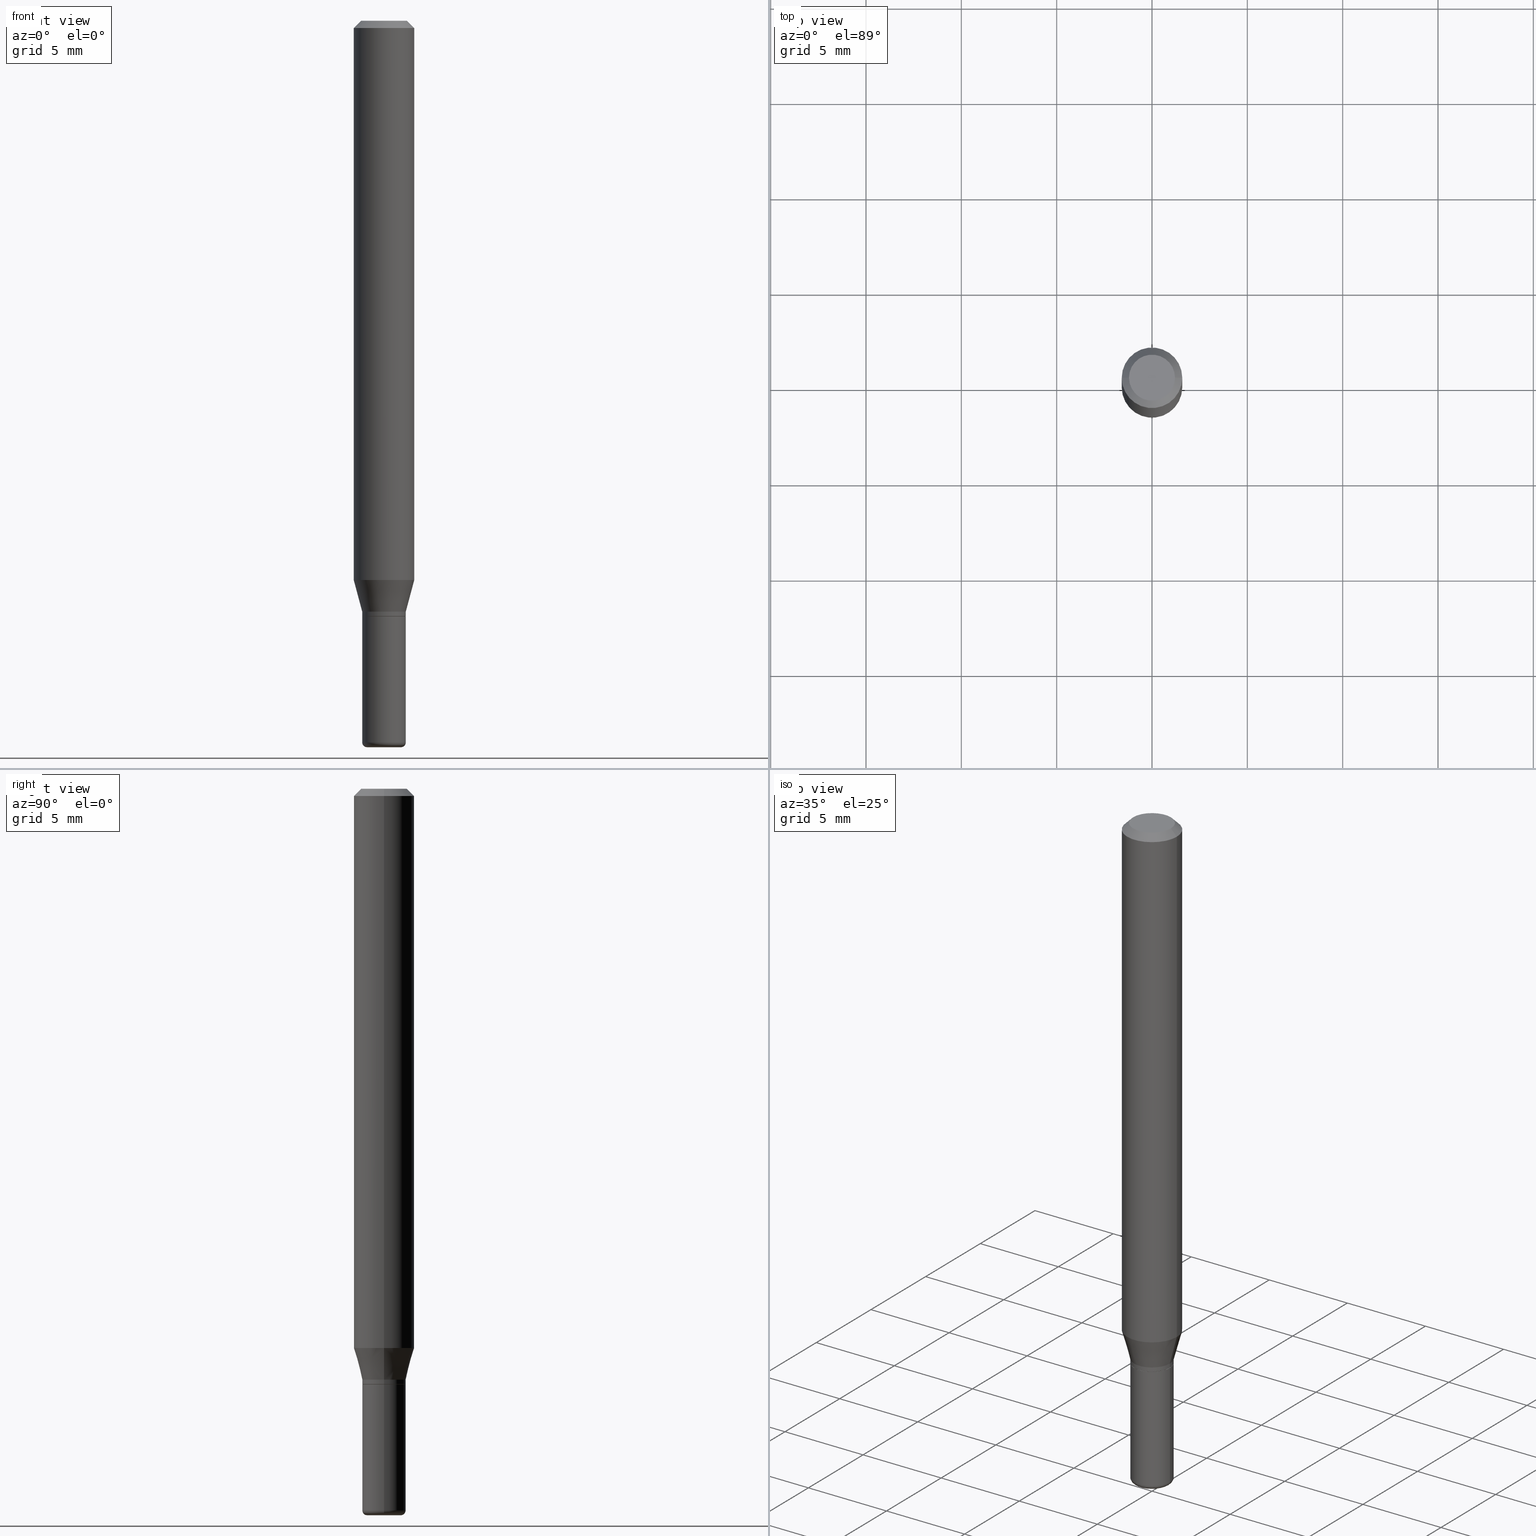
[diagram: canonical four-view strip — front | top / right | iso, engineering-drawing reading convention]
A machine part, canonical four-view strip (front | top / right | iso — engineering-drawing reading convention). The complete STEP part file that produces these views, byte-faithful:
ISO-10303-21;
HEADER;
FILE_DESCRIPTION (( 'STEP AP203' ),
    '1' );
FILE_NAME ('08719.STEP',
    '2024-02-29T20:35:00',
    ( '' ),
    ( '' ),
    'SwSTEP 2.0',
    'SolidWorks 2023',
    '' );
FILE_SCHEMA (( 'CONFIG_CONTROL_DESIGN' ));
ENDSEC;

DATA;
#1 = ORIENTED_EDGE ( 'NONE', *, *, #498, .F. ) ;
#2 = CARTESIAN_POINT ( 'NONE',  ( -6.680649051745406845E-45, 9.538196290434862081E-31, 2.731847993664263218E-16 ) ) ;
#3 = DIRECTION ( 'NONE',  ( -2.445468806185136597E-29, 3.491481338843145583E-15, 1.000000000000000000 ) ) ;
#4 = AXIS2_PLACEMENT_3D ( 'NONE', #166, #211, #256 ) ;
#5 = ORIENTED_EDGE ( 'NONE', *, *, #274, .T. ) ;
#6 = CYLINDRICAL_SURFACE ( 'NONE', #254, 0.06250000000000000000 ) ;
#7 = EDGE_CURVE ( 'NONE', #174, #52, #346, .T. ) ;
#8 = CARTESIAN_POINT ( 'NONE',  ( 0.03499999999999999639, -5.446710888595307282E-15, -1.490000000000000213 ) ) ;
#9 = EDGE_LOOP ( 'NONE', ( #332, #51, #209, #293 ) ) ;
#10 = LINE ( 'NONE', #335, #376 ) ;
#11 = ORIENTED_EDGE ( 'NONE', *, *, #216, .F. ) ;
#12 = EDGE_LOOP ( 'NONE', ( #266, #377, #232, #454 ) ) ;
#13 = CALENDAR_DATE ( 2024, 29, 2 ) ;
#14 = CARTESIAN_POINT ( 'NONE',  ( -0.04499999999999997058, -3.973032075015603880E-15, -1.229500000000000259 ) ) ;
#15 = AXIS2_PLACEMENT_3D ( 'NONE', #333, #481, #131 ) ;
#16 = APPROVAL ( #496, 'UNSPECIFIED' ) ;
#17 = PERSON_AND_ORGANIZATION_ROLE ( 'creator' ) ;
#18 = ORIENTED_EDGE ( 'NONE', *, *, #101, .F. ) ;
#19 = CALENDAR_DATE ( 2024, 29, 2 ) ;
#20 = LENGTH_MEASURE_WITH_UNIT ( LENGTH_MEASURE( 0.02539999999999999897 ), #494 );
#21 = EDGE_CURVE ( 'NONE', #183, #249, #314, .T. ) ;
#22 = VECTOR ( 'NONE', #336, 39.37007874015748143 ) ;
#23 = APPROVAL_ROLE ( '' ) ;
#24 = EDGE_CURVE ( 'NONE', #267, #141, #352, .T. ) ;
#25 = VECTOR ( 'NONE', #307, 39.37007874015748854 ) ;
#26 = CARTESIAN_POINT ( 'NONE',  ( 3.643748521215853910E-29, -5.202307194876288105E-15, -1.490000000000000213 ) ) ;
#27 = CARTESIAN_POINT ( 'NONE',  ( 3.668203209277704895E-29, -5.237222008264718177E-15, -1.500000000000000222 ) ) ;
#28 = EDGE_CURVE ( 'NONE', #52, #165, #150, .T. ) ;
#29 = CONICAL_SURFACE ( 'NONE', #422, 0.04449999999999997014, 0.7853981633975507526 ) ;
#30 = VERTEX_POINT ( 'NONE', #287 ) ;
#31 = DIRECTION ( 'NONE',  ( -2.445468806185136877E-29, 3.491481338843145188E-15, 1.000000000000000000 ) ) ;
#32 = APPROVAL_DATE_TIME ( #71, #469 ) ;
#33 = ORIENTED_EDGE ( 'NONE', *, *, #28, .F. ) ;
#34 = ADVANCED_FACE ( 'NONE', ( #198 ), #408, .T. ) ;
#35 = ADVANCED_FACE ( 'NONE', ( #157 ), #251, .F. ) ;
#36 = CIRCLE ( 'NONE', #512, 0.009999999999999948166 ) ;
#37 = VECTOR ( 'NONE', #363, 39.37007874015748143 ) ;
#38 = DIRECTION ( 'NONE',  ( -1.000000000000000000, 6.982962677686265922E-15, -4.876176775795935793E-29 ) ) ;
#39 = PRODUCT_DEFINITION_SHAPE ( 'NONE', 'NONE',  #151 ) ;
#40 = CARTESIAN_POINT ( 'NONE',  ( -0.06250000000000000000, 3.840629472727455270E-16, -0.01499999999999970281 ) ) ;
#41 = DIRECTION ( 'NONE',  ( -2.445468806185136597E-29, 3.491481338843145583E-15, 1.000000000000000000 ) ) ;
#42 = DIRECTION ( 'NONE',  ( -2.445468806185136597E-29, 3.491481338843145583E-15, 1.000000000000000000 ) ) ;
#43 = ORIENTED_EDGE ( 'NONE', *, *, #24, .F. ) ;
#44 = FACE_OUTER_BOUND ( 'NONE', #357, .T. ) ;
#45 = ADVANCED_FACE ( 'NONE', ( #470 ), #384, .T. ) ;
#46 = AXIS2_PLACEMENT_3D ( 'NONE', #282, #84, #82 ) ;
#47 = DIMENSIONAL_EXPONENTS ( 1.000000000000000000, 0.000000000000000000, 0.000000000000000000, 0.000000000000000000, 0.000000000000000000, 0.000000000000000000, 0.000000000000000000 ) ;
#48 = DIRECTION ( 'NONE',  ( 1.000000000000000000, -6.982962677686267499E-15, 4.876176775795935793E-29 ) ) ;
#49 = AXIS2_PLACEMENT_3D ( 'NONE', #260, #483, #208 ) ;
#50 = FACE_OUTER_BOUND ( 'NONE', #421, .T. ) ;
#51 = ORIENTED_EDGE ( 'NONE', *, *, #56, .T. ) ;
#52 = VERTEX_POINT ( 'NONE', #235 ) ;
#53 = DIRECTION ( 'NONE',  ( -2.445468806185136597E-29, 3.491481338843145583E-15, 1.000000000000000000 ) ) ;
#54 = LINE ( 'NONE', #92, #385 ) ;
#55 = ORIENTED_EDGE ( 'NONE', *, *, #492, .T. ) ;
#56 = EDGE_CURVE ( 'NONE', #334, #249, #115, .T. ) ;
#57 =( NAMED_UNIT ( * ) PLANE_ANGLE_UNIT ( ) SI_UNIT ( $, .RADIAN. ) );
#58 = AXIS2_PLACEMENT_3D ( 'NONE', #468, #291, #501 ) ;
#59 = CONICAL_SURFACE ( 'NONE', #195, 0.06250000000000000000, 0.7853981633974488341 ) ;
#60 = DIRECTION ( 'NONE',  ( 0.000000000000000000, 0.000000000000000000, 1.000000000000000000 ) ) ;
#61 = ORIENTED_EDGE ( 'NONE', *, *, #158, .T. ) ;
#62 = EDGE_CURVE ( 'NONE', #249, #334, #409, .T. ) ;
#63 = ADVANCED_FACE ( 'NONE', ( #401 ), #431, .T. ) ;
#64 = EDGE_CURVE ( 'NONE', #180, #372, #393, .T. ) ;
#65 = CONICAL_SURFACE ( 'NONE', #123, 0.04499999999999995670, 0.2617993877991494633 ) ;
#66 = DIRECTION ( 'NONE',  ( -2.445468806185136597E-29, 3.491481338843145583E-15, 1.000000000000000000 ) ) ;
#67 = DIRECTION ( 'NONE',  ( -2.445468806185136597E-29, 3.491481338843145583E-15, 1.000000000000000000 ) ) ;
#68 = APPROVAL_ROLE ( '' ) ;
#69 = ORIENTED_EDGE ( 'NONE', *, *, #110, .T. ) ;
#70 = DIRECTION ( 'NONE',  ( 1.000000000000000000, -6.982962677686265922E-15, 4.876176775795935793E-29 ) ) ;
#71 = DATE_AND_TIME ( #429, #504 ) ;
#72 = AXIS2_PLACEMENT_3D ( 'NONE', #508, #168, #222 ) ;
#73 = LOCAL_TIME ( 15, 35, 0.000000000000000000, #230 ) ;
#74 = CARTESIAN_POINT ( 'NONE',  ( 0.04499999999999996364, -3.142333204958817850E-16, 2.194279549108169215E-30 ) ) ;
#75 = ADVANCED_FACE ( 'NONE', ( #219 ), #447, .T. ) ;
#76 = EDGE_CURVE ( 'NONE', #165, #403, #152, .T. ) ;
#77 = DIRECTION ( 'NONE',  ( 1.000000000000000000, -6.982962677686266711E-15, 0.000000000000000000 ) ) ;
#78 = LINE ( 'NONE', #402, #354 ) ;
#79 = DIRECTION ( 'NONE',  ( 1.000000000000000000, -6.982962677686275388E-15, 0.000000000000000000 ) ) ;
#80 = AXIS2_PLACEMENT_3D ( 'NONE', #288, #255, #173 ) ;
#81 = CARTESIAN_POINT ( 'NONE',  ( 3.142333204959120083E-16, 0.04499999999999570316, -1.230000000000000204 ) ) ;
#82 = DIRECTION ( 'NONE',  ( 1.000000000000000000, -6.982962677686269077E-15, 0.000000000000000000 ) ) ;
#83 = CARTESIAN_POINT ( 'NONE',  ( 0.04499999999999995670, -4.573840553884519999E-15, -1.220000000000000195 ) ) ;
#84 = DIRECTION ( 'NONE',  ( -2.445468806185136597E-29, 3.491481338843145583E-15, 1.000000000000000000 ) ) ;
#85 = ORIENTED_EDGE ( 'NONE', *, *, #110, .F. ) ;
#86 = DIRECTION ( 'NONE',  ( -2.445468806185136877E-29, 3.491481338843145188E-15, 1.000000000000000000 ) ) ;
#87 = CARTESIAN_POINT ( 'NONE',  ( 0.000000000000000000, 0.000000000000000000, 0.000000000000000000 ) ) ;
#88 = ORIENTED_EDGE ( 'NONE', *, *, #182, .F. ) ;
#89 = EDGE_LOOP ( 'NONE', ( #55, #443, #262, #33 ) ) ;
#90 = LOCAL_TIME ( 15, 35, 0.000000000000000000, #192 ) ;
#91 = CARTESIAN_POINT ( 'NONE',  ( 0.04750000000000000749, -4.035134999187568762E-16, 2.731847993664288856E-16 ) ) ;
#92 = CARTESIAN_POINT ( 'NONE',  ( 0.04499999999999997058, -3.142333204958818343E-16, 2.194279549108169565E-30 ) ) ;
#93 = ORIENTED_EDGE ( 'NONE', *, *, #24, .T. ) ;
#94 = ADVANCED_BREP_SHAPE_REPRESENTATION ( '08719', ( #140, #142, #100 ), #118 ) ;
#95 = CARTESIAN_POINT ( 'NONE',  ( 0.06250000000000000000, -4.811533449433669144E-16, -0.01499999999999970281 ) ) ;
#96 = EDGE_LOOP ( 'NONE', ( #61, #370, #43, #407 ) ) ;
#97 = ORIENTED_EDGE ( 'NONE', *, *, #322, .T. ) ;
#98 = AXIS2_PLACEMENT_3D ( 'NONE', #191, #312, #70 ) ;
#99 = AXIS2_PLACEMENT_3D ( 'NONE', #340, #362, #79 ) ;
#100 = AXIS2_PLACEMENT_3D ( 'NONE', #139, #60, #234 ) ;
#101 = EDGE_CURVE ( 'NONE', #372, #183, #169, .T. ) ;
#102 = CYLINDRICAL_SURFACE ( 'NONE', #343, 0.06250000000000000000 ) ;
#103 = ADVANCED_FACE ( 'NONE', ( #399 ), #433, .F. ) ;
#104 = LINE ( 'NONE', #95, #301 ) ;
#105 =( CONVERSION_BASED_UNIT ( 'INCH', #20 ) LENGTH_UNIT ( ) NAMED_UNIT ( #47 ) );
#106 = DIRECTION ( 'NONE',  ( 1.000000000000000000, -6.982962677686275388E-15, 0.000000000000000000 ) ) ;
#107 = AXIS2_PLACEMENT_3D ( 'NONE', #339, #42, #374 ) ;
#108 = APPROVAL_DATE_TIME ( #283, #248 ) ;
#109 = AXIS2_PLACEMENT_3D ( 'NONE', #188, #418, #238 ) ;
#110 = EDGE_CURVE ( 'NONE', #457, #405, #497, .T. ) ;
#111 = APPROVAL_STATUS ( 'not_yet_approved' ) ;
#112 = DIRECTION ( 'NONE',  ( 1.000000000000000000, -6.982962677686266711E-15, 0.000000000000000000 ) ) ;
#113 = DIRECTION ( 'NONE',  ( -2.445468806185136597E-29, 3.491481338843145583E-15, 1.000000000000000000 ) ) ;
#114 = CARTESIAN_POINT ( 'NONE',  ( 3.668203209277632395E-31, -5.237222008264614861E-17, -0.01499999999999970281 ) ) ;
#115 = CIRCLE ( 'NONE', #117, 0.04499999999999995670 ) ;
#116 = PRODUCT_RELATED_PRODUCT_CATEGORY ( 'detail', '', ( #127 ) ) ;
#117 = AXIS2_PLACEMENT_3D ( 'NONE', #423, #3, #212 ) ;
#118 =( GEOMETRIC_REPRESENTATION_CONTEXT ( 3 ) GLOBAL_UNCERTAINTY_ASSIGNED_CONTEXT ( ( #367 ) ) GLOBAL_UNIT_ASSIGNED_CONTEXT ( ( #105, #57, #148 ) ) REPRESENTATION_CONTEXT ( 'NONE', 'WORKASPACE' ) );
#119 = ORIENTED_EDGE ( 'NONE', *, *, #446, .T. ) ;
#120 = DIRECTION ( 'NONE',  ( -2.445468806185136877E-29, 3.491481338843145188E-15, 1.000000000000000000 ) ) ;
#121 = FACE_OUTER_BOUND ( 'NONE', #177, .T. ) ;
#122 = AXIS2_PLACEMENT_3D ( 'NONE', #26, #67, #246 ) ;
#123 = AXIS2_PLACEMENT_3D ( 'NONE', #366, #231, #106 ) ;
#124 = ADVANCED_FACE ( 'NONE', ( #328 ), #65, .T. ) ;
#125 = FACE_OUTER_BOUND ( 'NONE', #426, .T. ) ;
#126 = DIRECTION ( 'NONE',  ( 2.445468806185136597E-29, -3.491481338843145583E-15, -1.000000000000000000 ) ) ;
#127 = PRODUCT ( '08719', '08719', '', ( #185 ) ) ;
#128 = DIRECTION ( 'NONE',  ( -1.000000000000000000, 6.982962677686265922E-15, -4.876176775795935793E-29 ) ) ;
#129 = DIRECTION ( 'NONE',  ( 1.000000000000000000, -6.982962677686276177E-15, 4.883557194083116264E-29 ) ) ;
#130 = CARTESIAN_POINT ( 'NONE',  ( 0.000000000000000000, 0.000000000000000000, 0.000000000000000000 ) ) ;
#131 = DIRECTION ( 'NONE',  ( 1.000000000000000000, -6.982962677686275388E-15, 0.000000000000000000 ) ) ;
#132 = CARTESIAN_POINT ( 'NONE',  ( 3.668203209277632395E-31, -5.237222008264614861E-17, -0.01499999999999970281 ) ) ;
#133 = CARTESIAN_POINT ( 'NONE',  ( 3.643748521215853910E-29, -5.202307194876288105E-15, -1.490000000000000213 ) ) ;
#134 = PERSON ( 'UNSPECIFIED', 'UNSPECIFIED', 'UNSPECIFIED', ('UNSPECIFIED'), ('UNSPECIFIED'), ('UNSPECIFIED') ) ;
#135 = CC_DESIGN_DATE_AND_TIME_ASSIGNMENT ( #427, #351, ( #215 ) ) ;
#136 = CARTESIAN_POINT ( 'NONE',  ( 3.006703897204625975E-29, -4.292776306107648458E-15, -1.229500000000000259 ) ) ;
#137 = AXIS2_PLACEMENT_3D ( 'NONE', #205, #164, #474 ) ;
#138 = ORIENTED_EDGE ( 'NONE', *, *, #450, .T. ) ;
#139 = CARTESIAN_POINT ( 'NONE',  ( 0.000000000000000000, 0.000000000000000000, 0.000000000000000000 ) ) ;
#140 = MANIFOLD_SOLID_BREP ( 'Body-Move/Copy2[1]', #436 ) ;
#141 = VERTEX_POINT ( 'NONE', #387 ) ;
#142 = MANIFOLD_SOLID_BREP ( 'Body-Move/Copy2[2]', #502 ) ;
#143 = DIRECTION ( 'NONE',  ( 1.000000000000000000, -6.982962677686270655E-15, 0.000000000000000000 ) ) ;
#144 = VECTOR ( 'NONE', #31, 39.37007874015748143 ) ;
#145 = ADVANCED_FACE ( 'NONE', ( #505 ), #29, .T. ) ;
#146 = CIRCLE ( 'NONE', #107, 0.04449999999999997014 ) ;
#147 = APPROVAL_PERSON_ORGANIZATION ( #455, #16, #23 ) ;
#148 =( NAMED_UNIT ( * ) SI_UNIT ( $, .STERADIAN. ) SOLID_ANGLE_UNIT ( ) );
#149 = PLANE ( 'NONE',  #109 ) ;
#150 = LINE ( 'NONE', #465, #144 ) ;
#151 = PRODUCT_DEFINITION ( 'UNKNOWN', '', #203, #294 ) ;
#152 = CIRCLE ( 'NONE', #285, 0.06250000000000000000 ) ;
#153 = LOCAL_TIME ( 15, 35, 0.000000000000000000, #275 ) ;
#154 = DIRECTION ( 'NONE',  ( -1.000000000000000000, 6.982962677686266711E-15, 0.000000000000000000 ) ) ;
#155 = FACE_OUTER_BOUND ( 'NONE', #461, .T. ) ;
#156 = ORIENTED_EDGE ( 'NONE', *, *, #199, .T. ) ;
#157 = FACE_OUTER_BOUND ( 'NONE', #472, .T. ) ;
#158 = EDGE_CURVE ( 'NONE', #30, #380, #329, .T. ) ;
#159 = ADVANCED_FACE ( 'NONE', ( #155 ), #281, .T. ) ;
#160 = COORDINATED_UNIVERSAL_TIME_OFFSET ( 5, 0, .BEHIND. ) ;
#161 = AXIS2_PLACEMENT_3D ( 'NONE', #489, #342, #338 ) ;
#162 = EDGE_LOOP ( 'NONE', ( #252, #227, #413, #220 ) ) ;
#163 = PLANE ( 'NONE',  #398 ) ;
#164 = DIRECTION ( 'NONE',  ( -2.445468806185136597E-29, 3.491481338843145583E-15, 1.000000000000000000 ) ) ;
#165 = VERTEX_POINT ( 'NONE', #467 ) ;
#166 = CARTESIAN_POINT ( 'NONE',  ( -0.03499999999999999639, -4.953617237360252819E-15, -1.490000000000000213 ) ) ;
#167 = CARTESIAN_POINT ( 'NONE',  ( 3.668203209277632395E-31, -5.237222008264614861E-17, -0.01499999999999970281 ) ) ;
#168 = DIRECTION ( 'NONE',  ( -2.445468806185136597E-29, 3.491481338843145583E-15, 1.000000000000000000 ) ) ;
#169 = LINE ( 'NONE', #253, #279 ) ;
#170 = DIRECTION ( 'NONE',  ( -2.445468806185136597E-29, 3.491481338843145583E-15, 1.000000000000000000 ) ) ;
#171 = ORIENTED_EDGE ( 'NONE', *, *, #62, .F. ) ;
#172 = CARTESIAN_POINT ( 'NONE',  ( -0.06250000000000000000, 4.440892098500626162E-16, -3.074334431409316114E-30 ) ) ;
#173 = DIRECTION ( 'NONE',  ( 1.000000000000000000, -6.982962677686276966E-15, 0.000000000000000000 ) ) ;
#174 = VERTEX_POINT ( 'NONE', #353 ) ;
#175 = DIRECTION ( 'NONE',  ( 2.445468806185136597E-29, -3.491481338843145583E-15, -1.000000000000000000 ) ) ;
#176 = EDGE_CURVE ( 'NONE', #396, #241, #237, .T. ) ;
#177 = EDGE_LOOP ( 'NONE', ( #480, #119, #490, #513 ) ) ;
#178 = APPROVAL_DATE_TIME ( #378, #16 ) ;
#179 = VECTOR ( 'NONE', #475, 39.37007874015748143 ) ;
#180 = VERTEX_POINT ( 'NONE', #476 ) ;
#181 = APPROVAL_PERSON_ORGANIZATION ( #321, #248, #68 ) ;
#182 = EDGE_CURVE ( 'NONE', #174, #403, #406, .T. ) ;
#183 = VERTEX_POINT ( 'NONE', #331 ) ;
#184 = DATE_AND_TIME ( #19, #153 ) ;
#185 = MECHANICAL_CONTEXT ( 'NONE', #392, 'mechanical' ) ;
#186 = CIRCLE ( 'NONE', #161, 0.04499999999999994976 ) ;
#187 = CC_DESIGN_APPROVAL ( #469, ( #215 ) ) ;
#188 = CARTESIAN_POINT ( 'NONE',  ( 3.582686580359766038E-29, -5.359686688179453325E-15, -1.500000000000000222 ) ) ;
#189 = ADVANCED_FACE ( 'NONE', ( #125 ), #479, .T. ) ;
#190 = COORDINATED_UNIVERSAL_TIME_OFFSET ( 5, 0, .BEHIND. ) ;
#191 = CARTESIAN_POINT ( 'NONE',  ( 3.007926631607718216E-29, -4.294522046777069173E-15, -1.230000000000000204 ) ) ;
#192 = COORDINATED_UNIVERSAL_TIME_OFFSET ( 5, 0, .BEHIND. ) ;
#193 = DIRECTION ( 'NONE',  ( -2.445468806185136597E-29, 3.491481338843145583E-15, 1.000000000000000000 ) ) ;
#194 = AXIS2_PLACEMENT_3D ( 'NONE', #510, #309, #200 ) ;
#195 = AXIS2_PLACEMENT_3D ( 'NONE', #132, #175, #484 ) ;
#196 = CIRCLE ( 'NONE', #320, 0.04750000000000000749 ) ;
#197 = FACE_OUTER_BOUND ( 'NONE', #327, .T. ) ;
#198 = FACE_OUTER_BOUND ( 'NONE', #416, .T. ) ;
#199 = EDGE_CURVE ( 'NONE', #30, #267, #36, .T. ) ;
#200 = DIRECTION ( 'NONE',  ( 1.000000000000000000, -6.982962677686261977E-15, 0.000000000000000000 ) ) ;
#201 = ORIENTED_EDGE ( 'NONE', *, *, #464, .F. ) ;
#202 = AXIS2_PLACEMENT_3D ( 'NONE', #130, #261, #48 ) ;
#203 = PRODUCT_DEFINITION_FORMATION_WITH_SPECIFIED_SOURCE ( 'ANY', '', #127, .NOT_KNOWN. ) ;
#204 = EDGE_CURVE ( 'NONE', #267, #396, #54, .T. ) ;
#205 = CARTESIAN_POINT ( 'NONE',  ( -6.680649051745406845E-45, 9.538196290434862081E-31, 2.731847993664263218E-16 ) ) ;
#206 = LINE ( 'NONE', #292, #341 ) ;
#207 = CARTESIAN_POINT ( 'NONE',  ( -0.04449999999999997014, -3.978330529363825493E-15, -1.230000000000000204 ) ) ;
#208 = DIRECTION ( 'NONE',  ( 1.000000000000000000, -6.982962677686261977E-15, 0.000000000000000000 ) ) ;
#209 = ORIENTED_EDGE ( 'NONE', *, *, #515, .T. ) ;
#210 = VERTEX_POINT ( 'NONE', #14 ) ;
#211 = DIRECTION ( 'NONE',  ( 7.105427357601001859E-15, 1.000000000000000000, -3.491481338843145583E-15 ) ) ;
#212 = DIRECTION ( 'NONE',  ( 1.000000000000000000, -6.982962677686275388E-15, 0.000000000000000000 ) ) ;
#213 = AXIS2_PLACEMENT_3D ( 'NONE', #258, #289, #38 ) ;
#214 = CC_DESIGN_PERSON_AND_ORGANIZATION_ASSIGNMENT ( #507, #313, ( #215 ) ) ;
#215 = SECURITY_CLASSIFICATION ( '', '', #315 ) ;
#216 = EDGE_CURVE ( 'NONE', #141, #267, #186, .T. ) ;
#217 = ORIENTED_EDGE ( 'NONE', *, *, #349, .F. ) ;
#218 = CARTESIAN_POINT ( 'NONE',  ( 0.04499999999999999833, -4.608755367272951648E-15, -1.230000000000000204 ) ) ;
#219 = FACE_OUTER_BOUND ( 'NONE', #373, .T. ) ;
#220 = ORIENTED_EDGE ( 'NONE', *, *, #515, .F. ) ;
#221 = ORIENTED_EDGE ( 'NONE', *, *, #358, .F. ) ;
#222 = DIRECTION ( 'NONE',  ( 1.000000000000000000, -6.982962677686276177E-15, 4.883557194083116264E-29 ) ) ;
#223 = DIRECTION ( 'NONE',  ( -2.445468806185136877E-29, 3.491481338843145188E-15, 1.000000000000000000 ) ) ;
#224 = EDGE_LOOP ( 'NONE', ( #493, #434 ) ) ;
#225 = ORIENTED_EDGE ( 'NONE', *, *, #463, .F. ) ;
#226 = ADVANCED_FACE ( 'NONE', ( #298 ), #452, .T. ) ;
#227 = ORIENTED_EDGE ( 'NONE', *, *, #430, .T. ) ;
#228 = APPROVAL_PERSON_ORGANIZATION ( #424, #469, #395 ) ;
#229 = EDGE_CURVE ( 'NONE', #403, #165, #300, .T. ) ;
#230 = COORDINATED_UNIVERSAL_TIME_OFFSET ( 5, 0, .BEHIND. ) ;
#231 = DIRECTION ( 'NONE',  ( -2.445468806185136597E-29, 3.491481338843145583E-15, 1.000000000000000000 ) ) ;
#232 = ORIENTED_EDGE ( 'NONE', *, *, #101, .T. ) ;
#233 = APPLICATION_CONTEXT ( 'configuration controlled 3d designs of mechanical parts and assemblies' ) ;
#234 = DIRECTION ( 'NONE',  ( 1.000000000000000000, 0.000000000000000000, 0.000000000000000000 ) ) ;
#235 = CARTESIAN_POINT ( 'NONE',  ( 0.06250000000000000000, -4.468010650114807348E-15, -1.154689110867544555 ) ) ;
#236 = ADVANCED_FACE ( 'NONE', ( #197 ), #460, .T. ) ;
#237 = CIRCLE ( 'NONE', #46, 0.04499999999999999833 ) ;
#238 = DIRECTION ( 'NONE',  ( 1.000000000000000000, -6.982962677686265922E-15, 4.876176775795935793E-29 ) ) ;
#239 = PERSON_AND_ORGANIZATION_ROLE ( 'design_supplier' ) ;
#240 = DIRECTION ( 'NONE',  ( 1.000000000000000000, -6.982962677686261977E-15, 0.000000000000000000 ) ) ;
#241 = VERTEX_POINT ( 'NONE', #299 ) ;
#242 = ADVANCED_FACE ( 'NONE', ( #50 ), #6, .T. ) ;
#243 = CARTESIAN_POINT ( 'NONE',  ( 3.007926631607718216E-29, -4.294522046777069173E-15, -1.230000000000000204 ) ) ;
#244 = EDGE_LOOP ( 'NONE', ( #1, #85, #138, #323 ) ) ;
#245 = CIRCLE ( 'NONE', #4, 0.009999999999999948166 ) ;
#246 = DIRECTION ( 'NONE',  ( 1.000000000000000000, -6.982962677686276177E-15, 0.000000000000000000 ) ) ;
#247 = PERSON_AND_ORGANIZATION_ROLE ( 'creator' ) ;
#248 = APPROVAL ( #111, 'UNSPECIFIED' ) ;
#249 = VERTEX_POINT ( 'NONE', #83 ) ;
#250 = PERSON_AND_ORGANIZATION ( #134, #420 ) ;
#251 = PLANE ( 'NONE',  #98 ) ;
#252 = ORIENTED_EDGE ( 'NONE', *, *, #62, .T. ) ;
#253 = CARTESIAN_POINT ( 'NONE',  ( 0.04449999999999997014, -4.605263885934107852E-15, -1.230000000000000204 ) ) ;
#254 = AXIS2_PLACEMENT_3D ( 'NONE', #442, #445, #517 ) ;
#255 = DIRECTION ( 'NONE',  ( -2.445468806185136597E-29, 3.491481338843145583E-15, 1.000000000000000000 ) ) ;
#256 = DIRECTION ( 'NONE',  ( -1.000000000000000000, 7.105427357600962416E-15, 0.000000000000000000 ) ) ;
#257 = ORIENTED_EDGE ( 'NONE', *, *, #216, .T. ) ;
#258 = CARTESIAN_POINT ( 'NONE',  ( 3.316907271900976589E-16, 0.04750000000000000749, -2.925296391183627249E-17 ) ) ;
#259 = CARTESIAN_POINT ( 'NONE',  ( -0.03500000000000000333, -4.935547507266464392E-15, -1.500000000000000222 ) ) ;
#260 = CARTESIAN_POINT ( 'NONE',  ( 3.007926631607718216E-29, -4.294522046777069173E-15, -1.230000000000000204 ) ) ;
#261 = DIRECTION ( 'NONE',  ( -2.445468806185136597E-29, 3.491481338843145583E-15, 1.000000000000000000 ) ) ;
#262 = ORIENTED_EDGE ( 'NONE', *, *, #76, .F. ) ;
#263 = CARTESIAN_POINT ( 'NONE',  ( 0.000000000000000000, 0.000000000000000000, 0.000000000000000000 ) ) ;
#264 = CC_DESIGN_DATE_AND_TIME_ASSIGNMENT ( #184, #345, ( #151 ) ) ;
#265 = CIRCLE ( 'NONE', #311, 0.06250000000000000000 ) ;
#266 = ORIENTED_EDGE ( 'NONE', *, *, #379, .F. ) ;
#267 = VERTEX_POINT ( 'NONE', #296 ) ;
#268 = DIRECTION ( 'NONE',  ( -0.2588190451025207395, 5.211531920934546309E-15, 0.9659258262890682012 ) ) ;
#269 = DIRECTION ( 'NONE',  ( -6.982962677686266711E-15, -1.000000000000000000, 3.491481338843145583E-15 ) ) ;
#270 = ORIENTED_EDGE ( 'NONE', *, *, #295, .F. ) ;
#271 = ADVANCED_FACE ( 'NONE', ( #44 ), #163, .F. ) ;
#272 = CARTESIAN_POINT ( 'NONE',  ( 2.823756201468231071E-29, -4.031575482759415678E-15, -1.154689110867544555 ) ) ;
#273 = ORIENTED_EDGE ( 'NONE', *, *, #229, .F. ) ;
#274 = EDGE_CURVE ( 'NONE', #210, #334, #206, .T. ) ;
#275 = COORDINATED_UNIVERSAL_TIME_OFFSET ( 5, 0, .BEHIND. ) ;
#276 = AXIS2_PLACEMENT_3D ( 'NONE', #425, #193, #317 ) ;
#277 = CARTESIAN_POINT ( 'NONE',  ( 0.04499999999999995670, -4.573840553884519999E-15, -1.220000000000000195 ) ) ;
#278 = FACE_OUTER_BOUND ( 'NONE', #224, .T. ) ;
#279 = VECTOR ( 'NONE', #359, 39.37007874015748143 ) ;
#280 = CALENDAR_DATE ( 2024, 29, 2 ) ;
#281 = CYLINDRICAL_SURFACE ( 'NONE', #276, 0.04499999999999996364 ) ;
#282 = CARTESIAN_POINT ( 'NONE',  ( 3.007926631607718216E-29, -4.294522046777069173E-15, -1.230000000000000204 ) ) ;
#283 = DATE_AND_TIME ( #280, #90 ) ;
#284 = DIRECTION ( 'NONE',  ( -2.445468806185136597E-29, 3.491481338843145583E-15, 1.000000000000000000 ) ) ;
#285 = AXIS2_PLACEMENT_3D ( 'NONE', #167, #516, #77 ) ;
#286 = AXIS2_PLACEMENT_3D ( 'NONE', #133, #41, #129 ) ;
#287 = CARTESIAN_POINT ( 'NONE',  ( 0.03500000000000000333, -5.481625701983738143E-15, -1.500000000000000222 ) ) ;
#288 = CARTESIAN_POINT ( 'NONE',  ( 3.668203209277704895E-29, -5.237222008264718177E-15, -1.500000000000000222 ) ) ;
#289 = DIRECTION ( 'NONE',  ( 2.438088387897960049E-29, -3.491481338843145188E-15, -1.000000000000000000 ) ) ;
#290 = CYLINDRICAL_SURFACE ( 'NONE', #439, 0.04499999999999996364 ) ;
#291 = DIRECTION ( 'NONE',  ( -2.445468806185136597E-29, 3.491481338843145583E-15, 1.000000000000000000 ) ) ;
#292 = CARTESIAN_POINT ( 'NONE',  ( -0.04499999999999996364, 3.197442310920448253E-16, -2.213520790614705808E-30 ) ) ;
#293 = ORIENTED_EDGE ( 'NONE', *, *, #7, .F. ) ;
#294 = DESIGN_CONTEXT ( 'detailed design', #233, 'design' ) ;
#295 = EDGE_CURVE ( 'NONE', #380, #141, #245, .T. ) ;
#296 = CARTESIAN_POINT ( 'NONE',  ( 0.04499999999999994976, -5.516540515372169792E-15, -1.490000000000000213 ) ) ;
#297 = ORIENTED_EDGE ( 'NONE', *, *, #391, .T. ) ;
#298 = FACE_OUTER_BOUND ( 'NONE', #9, .T. ) ;
#299 = CARTESIAN_POINT ( 'NONE',  ( -0.04500000000000000527, -4.428670389734633666E-15, -1.230000000000000204 ) ) ;
#300 = CIRCLE ( 'NONE', #361, 0.06250000000000000000 ) ;
#301 = VECTOR ( 'NONE', #462, 39.37007874015748143 ) ;
#302 = ORIENTED_EDGE ( 'NONE', *, *, #76, .T. ) ;
#303 = APPLICATION_PROTOCOL_DEFINITION ( 'international standard', 'config_control_design', 1994, #392 ) ;
#304 = EDGE_LOOP ( 'NONE', ( #225, #486, #302, #485 ) ) ;
#305 = DIRECTION ( 'NONE',  ( 1.000000000000000000, -6.982962677686266711E-15, 4.876176775795935793E-29 ) ) ;
#306 = CIRCLE ( 'NONE', #394, 0.04499999999999999833 ) ;
#307 = DIRECTION ( 'NONE',  ( 0.2588190451025207395, 1.565188264969626109E-15, 0.9659258262890682012 ) ) ;
#308 = DIRECTION ( 'NONE',  ( -2.445468806185136597E-29, 3.491481338843145583E-15, 1.000000000000000000 ) ) ;
#309 = DIRECTION ( 'NONE',  ( -2.445468806185136597E-29, 3.491481338843145583E-15, 1.000000000000000000 ) ) ;
#310 = CIRCLE ( 'NONE', #80, 0.03500000000000000333 ) ;
#311 = AXIS2_PLACEMENT_3D ( 'NONE', #272, #350, #143 ) ;
#312 = DIRECTION ( 'NONE',  ( -2.438088387897960049E-29, 3.491481338843145188E-15, 1.000000000000000000 ) ) ;
#313 = PERSON_AND_ORGANIZATION_ROLE ( 'classification_officer' ) ;
#314 = LINE ( 'NONE', #74, #495 ) ;
#315 = SECURITY_CLASSIFICATION_LEVEL ( 'unclassified' ) ;
#316 = DIRECTION ( 'NONE',  ( -2.445468806185136597E-29, 3.491481338843145583E-15, 1.000000000000000000 ) ) ;
#317 = DIRECTION ( 'NONE',  ( 1.000000000000000000, -6.982962677686267499E-15, 4.876176775795935793E-29 ) ) ;
#318 = ORIENTED_EDGE ( 'NONE', *, *, #21, .F. ) ;
#319 = DIRECTION ( 'NONE',  ( -2.445468806185136877E-29, 3.491481338843145188E-15, 1.000000000000000000 ) ) ;
#320 = AXIS2_PLACEMENT_3D ( 'NONE', #2, #170, #330 ) ;
#321 = PERSON_AND_ORGANIZATION ( #134, #420 ) ;
#322 = EDGE_CURVE ( 'NONE', #372, #180, #146, .T. ) ;
#323 = ORIENTED_EDGE ( 'NONE', *, *, #229, .T. ) ;
#324 = DIRECTION ( 'NONE',  ( 1.000000000000000000, -6.982962677686273021E-15, 0.000000000000000000 ) ) ;
#325 = DIRECTION ( 'NONE',  ( -2.445468806185136597E-29, 3.491481338843145583E-15, 1.000000000000000000 ) ) ;
#326 = CARTESIAN_POINT ( 'NONE',  ( -0.04499999999999995670, -3.763674637602973398E-15, -1.220000000000000195 ) ) ;
#327 = EDGE_LOOP ( 'NONE', ( #270, #297, #156, #11 ) ) ;
#328 = FACE_OUTER_BOUND ( 'NONE', #162, .T. ) ;
#329 = CIRCLE ( 'NONE', #487, 0.03500000000000000333 ) ;
#330 = DIRECTION ( 'NONE',  ( 1.000000000000000000, -6.982962677686266711E-15, 4.852736867747365086E-29 ) ) ;
#331 = CARTESIAN_POINT ( 'NONE',  ( 0.04499999999999997058, -4.607009626603530145E-15, -1.229500000000000259 ) ) ;
#332 = ORIENTED_EDGE ( 'NONE', *, *, #430, .F. ) ;
#333 = CARTESIAN_POINT ( 'NONE',  ( 2.983471943545866670E-29, -4.259607233388637524E-15, -1.220000000000000195 ) ) ;
#334 = VERTEX_POINT ( 'NONE', #326 ) ;
#335 = CARTESIAN_POINT ( 'NONE',  ( -0.04499999999999995670, -3.939863002296592945E-15, -1.220000000000000195 ) ) ;
#336 = DIRECTION ( 'NONE',  ( -2.445468806185136877E-29, 3.491481338843145188E-15, 1.000000000000000000 ) ) ;
#337 = ORIENTED_EDGE ( 'NONE', *, *, #464, .T. ) ;
#338 = DIRECTION ( 'NONE',  ( 1.000000000000000000, -6.982962677686276177E-15, 0.000000000000000000 ) ) ;
#339 = CARTESIAN_POINT ( 'NONE',  ( 3.007926631607718216E-29, -4.294522046777069173E-15, -1.230000000000000204 ) ) ;
#340 = CARTESIAN_POINT ( 'NONE',  ( 2.983471943545866670E-29, -4.259607233388637524E-15, -1.220000000000000195 ) ) ;
#341 = VECTOR ( 'NONE', #120, 39.37007874015748143 ) ;
#342 = DIRECTION ( 'NONE',  ( -2.445468806185136597E-29, 3.491481338843145583E-15, 1.000000000000000000 ) ) ;
#343 = AXIS2_PLACEMENT_3D ( 'NONE', #344, #308, #305 ) ;
#344 = CARTESIAN_POINT ( 'NONE',  ( 0.000000000000000000, 0.000000000000000000, 0.000000000000000000 ) ) ;
#345 = DATE_TIME_ROLE ( 'creation_date' ) ;
#346 = CIRCLE ( 'NONE', #58, 0.06250000000000000000 ) ;
#347 = AXIS2_PLACEMENT_3D ( 'NONE', #87, #325, #518 ) ;
#348 = CC_DESIGN_APPROVAL ( #16, ( #151 ) ) ;
#349 = EDGE_CURVE ( 'NONE', #183, #210, #419, .T. ) ;
#350 = DIRECTION ( 'NONE',  ( -2.445468806185136597E-29, 3.491481338843145583E-15, 1.000000000000000000 ) ) ;
#351 = DATE_TIME_ROLE ( 'classification_date' ) ;
#352 = CIRCLE ( 'NONE', #122, 0.04499999999999994976 ) ;
#353 = CARTESIAN_POINT ( 'NONE',  ( -0.06250000000000000000, -3.587486272909353851E-15, -1.154689110867544555 ) ) ;
#354 = VECTOR ( 'NONE', #86, 39.37007874015748143 ) ;
#355 = SHAPE_DEFINITION_REPRESENTATION ( #39, #94 ) ;
#356 = DIRECTION ( 'NONE',  ( 1.000000000000000000, -6.982962677686276966E-15, 0.000000000000000000 ) ) ;
#357 = EDGE_LOOP ( 'NONE', ( #360, #337 ) ) ;
#358 = EDGE_CURVE ( 'NONE', #141, #241, #78, .T. ) ;
#359 = DIRECTION ( 'NONE',  ( 0.7071067811866199593, -2.468850131083015945E-15, 0.7071067811864750752 ) ) ;
#360 = ORIENTED_EDGE ( 'NONE', *, *, #176, .T. ) ;
#361 = AXIS2_PLACEMENT_3D ( 'NONE', #449, #316, #112 ) ;
#362 = DIRECTION ( 'NONE',  ( -2.445468806185136597E-29, 3.491481338843145583E-15, 1.000000000000000000 ) ) ;
#363 = DIRECTION ( 'NONE',  ( -0.7071067811865479058, 2.468850131082261005E-15, -0.7071067811865471286 ) ) ;
#364 = CARTESIAN_POINT ( 'NONE',  ( -0.04750000000000000749, 3.578768372314221353E-16, 2.731847993664239060E-16 ) ) ;
#365 = ORIENTED_EDGE ( 'NONE', *, *, #322, .F. ) ;
#366 = CARTESIAN_POINT ( 'NONE',  ( 2.983471943545866670E-29, -4.259607233388637524E-15, -1.220000000000000195 ) ) ;
#367 = UNCERTAINTY_MEASURE_WITH_UNIT (LENGTH_MEASURE( 1.000000000000000082E-05 ), #105, 'distance_accuracy_value', 'NONE');
#368 = DIRECTION ( 'NONE',  ( 1.000000000000000000, -6.982962677686267499E-15, 4.876176775795935793E-29 ) ) ;
#369 = ORIENTED_EDGE ( 'NONE', *, *, #204, .F. ) ;
#370 = ORIENTED_EDGE ( 'NONE', *, *, #295, .T. ) ;
#371 = CARTESIAN_POINT ( 'NONE',  ( -0.06250000000000000000, -1.597884641570968368E-15, -0.01499999999999970281 ) ) ;
#372 = VERTEX_POINT ( 'NONE', #404 ) ;
#373 = EDGE_LOOP ( 'NONE', ( #221, #257, #417, #201 ) ) ;
#374 = DIRECTION ( 'NONE',  ( 1.000000000000000000, -6.982962677686261977E-15, 0.000000000000000000 ) ) ;
#375 = ORIENTED_EDGE ( 'NONE', *, *, #379, .T. ) ;
#376 = VECTOR ( 'NONE', #268, 39.37007874015748854 ) ;
#377 = ORIENTED_EDGE ( 'NONE', *, *, #64, .T. ) ;
#378 = DATE_AND_TIME ( #13, #73 ) ;
#379 = EDGE_CURVE ( 'NONE', #180, #210, #453, .T. ) ;
#380 = VERTEX_POINT ( 'NONE', #259 ) ;
#381 = LINE ( 'NONE', #277, #25 ) ;
#382 = CC_DESIGN_PERSON_AND_ORGANIZATION_ASSIGNMENT ( #488, #17, ( #151 ) ) ;
#383 = PERSON_AND_ORGANIZATION ( #134, #420 ) ;
#384 = CONICAL_SURFACE ( 'NONE', #451, 0.06250000000000000000, 0.7853981633974488341 ) ;
#385 = VECTOR ( 'NONE', #223, 39.37007874015748143 ) ;
#386 = CC_DESIGN_SECURITY_CLASSIFICATION ( #215, ( #203 ) ) ;
#387 = CARTESIAN_POINT ( 'NONE',  ( -0.04499999999999994976, -4.428670389734633666E-15, -1.490000000000000213 ) ) ;
#388 = APPROVAL_STATUS ( 'not_yet_approved' ) ;
#389 = ORIENTED_EDGE ( 'NONE', *, *, #358, .T. ) ;
#390 = ADVANCED_FACE ( 'NONE', ( #121 ), #290, .T. ) ;
#391 = EDGE_CURVE ( 'NONE', #380, #30, #310, .T. ) ;
#392 = APPLICATION_CONTEXT ( 'configuration controlled 3d designs of mechanical parts and assemblies' ) ;
#393 = CIRCLE ( 'NONE', #49, 0.04449999999999997014 ) ;
#394 = AXIS2_PLACEMENT_3D ( 'NONE', #478, #66, #459 ) ;
#395 = APPROVAL_ROLE ( '' ) ;
#396 = VERTEX_POINT ( 'NONE', #218 ) ;
#397 = ORIENTED_EDGE ( 'NONE', *, *, #28, .T. ) ;
#398 = AXIS2_PLACEMENT_3D ( 'NONE', #81, #435, #128 ) ;
#399 = FACE_OUTER_BOUND ( 'NONE', #437, .T. ) ;
#400 = DIRECTION ( 'NONE',  ( 1.000000000000000000, -6.982962677686273021E-15, 0.000000000000000000 ) ) ;
#401 = FACE_OUTER_BOUND ( 'NONE', #96, .T. ) ;
#402 = CARTESIAN_POINT ( 'NONE',  ( -0.04499999999999997058, 3.197442310920448746E-16, -2.213520790614706158E-30 ) ) ;
#403 = VERTEX_POINT ( 'NONE', #371 ) ;
#404 = CARTESIAN_POINT ( 'NONE',  ( 0.04449999999999997014, -4.605263885934107852E-15, -1.230000000000000204 ) ) ;
#405 = VERTEX_POINT ( 'NONE', #91 ) ;
#406 = LINE ( 'NONE', #172, #22 ) ;
#407 = ORIENTED_EDGE ( 'NONE', *, *, #199, .F. ) ;
#408 = CONICAL_SURFACE ( 'NONE', #194, 0.04449999999999997014, 0.7853981633975507526 ) ;
#409 = CIRCLE ( 'NONE', #99, 0.04499999999999995670 ) ;
#410 = LOCAL_TIME ( 15, 35, 0.000000000000000000, #190 ) ;
#411 = DIRECTION ( 'NONE',  ( -2.445468806185136597E-29, 3.491481338843145583E-15, 1.000000000000000000 ) ) ;
#412 = CC_DESIGN_PERSON_AND_ORGANIZATION_ASSIGNMENT ( #511, #239, ( #203 ) ) ;
#413 = ORIENTED_EDGE ( 'NONE', *, *, #492, .F. ) ;
#414 = DIRECTION ( 'NONE',  ( -2.445468806185136597E-29, 3.491481338843145583E-15, 1.000000000000000000 ) ) ;
#415 = DIRECTION ( 'NONE',  ( 1.000000000000000000, -6.982962677686272233E-15, 0.000000000000000000 ) ) ;
#416 = EDGE_LOOP ( 'NONE', ( #97, #375, #217, #18 ) ) ;
#417 = ORIENTED_EDGE ( 'NONE', *, *, #204, .T. ) ;
#418 = DIRECTION ( 'NONE',  ( -2.438088387897960049E-29, 3.491481338843145188E-15, 1.000000000000000000 ) ) ;
#419 = CIRCLE ( 'NONE', #471, 0.04499999999999997058 ) ;
#420 = ORGANIZATION ( 'UNSPECIFIED', 'UNSPECIFIED', '' ) ;
#421 = EDGE_LOOP ( 'NONE', ( #88, #509, #397, #273 ) ) ;
#422 = AXIS2_PLACEMENT_3D ( 'NONE', #243, #113, #240 ) ;
#423 = CARTESIAN_POINT ( 'NONE',  ( 2.983471943545866670E-29, -4.259607233388637524E-15, -1.220000000000000195 ) ) ;
#424 = PERSON_AND_ORGANIZATION ( #134, #420 ) ;
#425 = CARTESIAN_POINT ( 'NONE',  ( 0.000000000000000000, 0.000000000000000000, 0.000000000000000000 ) ) ;
#426 = EDGE_LOOP ( 'NONE', ( #93, #389, #428, #369 ) ) ;
#427 = DATE_AND_TIME ( #466, #410 ) ;
#428 = ORIENTED_EDGE ( 'NONE', *, *, #176, .F. ) ;
#429 = CALENDAR_DATE ( 2024, 29, 2 ) ;
#430 = EDGE_CURVE ( 'NONE', #334, #174, #10, .T. ) ;
#431 = TOROIDAL_SURFACE ( 'NONE', #286, 0.03499999999999999639, 0.009999999999999946432 ) ;
#432 = ADVANCED_FACE ( 'NONE', ( #482 ), #59, .T. ) ;
#433 = PLANE ( 'NONE',  #213 ) ;
#434 = ORIENTED_EDGE ( 'NONE', *, *, #391, .F. ) ;
#435 = DIRECTION ( 'NONE',  ( 2.438088387897960049E-29, -3.491481338843145188E-15, -1.000000000000000000 ) ) ;
#436 = CLOSED_SHELL ( 'NONE', ( #63, #189, #271, #75, #236, #514 ) ) ;
#437 = EDGE_LOOP ( 'NONE', ( #69, #448 ) ) ;
#438 = CC_DESIGN_PERSON_AND_ORGANIZATION_ASSIGNMENT ( #250, #247, ( #203 ) ) ;
#439 = AXIS2_PLACEMENT_3D ( 'NONE', #263, #411, #368 ) ;
#440 = CC_DESIGN_APPROVAL ( #248, ( #203 ) ) ;
#441 = LINE ( 'NONE', #40, #37 ) ;
#442 = CARTESIAN_POINT ( 'NONE',  ( 0.000000000000000000, 0.000000000000000000, 0.000000000000000000 ) ) ;
#443 = ORIENTED_EDGE ( 'NONE', *, *, #182, .T. ) ;
#444 = ORIENTED_EDGE ( 'NONE', *, *, #349, .T. ) ;
#445 = DIRECTION ( 'NONE',  ( -2.445468806185136597E-29, 3.491481338843145583E-15, 1.000000000000000000 ) ) ;
#446 = EDGE_CURVE ( 'NONE', #210, #183, #503, .T. ) ;
#447 = CYLINDRICAL_SURFACE ( 'NONE', #347, 0.04499999999999997058 ) ;
#448 = ORIENTED_EDGE ( 'NONE', *, *, #463, .T. ) ;
#449 = CARTESIAN_POINT ( 'NONE',  ( 3.668203209277632395E-31, -5.237222008264614861E-17, -0.01499999999999970281 ) ) ;
#450 = EDGE_CURVE ( 'NONE', #457, #403, #441, .T. ) ;
#451 = AXIS2_PLACEMENT_3D ( 'NONE', #114, #126, #154 ) ;
#452 = CONICAL_SURFACE ( 'NONE', #15, 0.04499999999999995670, 0.2617993877991494633 ) ;
#453 = LINE ( 'NONE', #207, #179 ) ;
#454 = ORIENTED_EDGE ( 'NONE', *, *, #446, .F. ) ;
#455 = PERSON_AND_ORGANIZATION ( #134, #420 ) ;
#456 = APPLICATION_PROTOCOL_DEFINITION ( 'international standard', 'config_control_design', 1994, #233 ) ;
#457 = VERTEX_POINT ( 'NONE', #364 ) ;
#458 = CC_DESIGN_PERSON_AND_ORGANIZATION_ASSIGNMENT ( #383, #500, ( #127 ) ) ;
#459 = DIRECTION ( 'NONE',  ( 1.000000000000000000, -6.982962677686269077E-15, 0.000000000000000000 ) ) ;
#460 = TOROIDAL_SURFACE ( 'NONE', #72, 0.03499999999999999639, 0.009999999999999946432 ) ;
#461 = EDGE_LOOP ( 'NONE', ( #444, #5, #171, #318 ) ) ;
#462 = DIRECTION ( 'NONE',  ( 0.7071067811865479058, -7.319954787623257623E-15, -0.7071067811865471286 ) ) ;
#463 = EDGE_CURVE ( 'NONE', #405, #457, #196, .T. ) ;
#464 = EDGE_CURVE ( 'NONE', #241, #396, #306, .T. ) ;
#465 = CARTESIAN_POINT ( 'NONE',  ( 0.06250000000000000000, -4.364351673553916694E-16, 3.047610484872459871E-30 ) ) ;
#466 = CALENDAR_DATE ( 2024, 29, 2 ) ;
#467 = CARTESIAN_POINT ( 'NONE',  ( 0.06250000000000000000, -4.888073874380378612E-16, -0.01499999999999970281 ) ) ;
#468 = CARTESIAN_POINT ( 'NONE',  ( 2.823756201468231071E-29, -4.031575482759415678E-15, -1.154689110867544555 ) ) ;
#469 = APPROVAL ( #388, 'UNSPECIFIED' ) ;
#470 = FACE_OUTER_BOUND ( 'NONE', #304, .T. ) ;
#471 = AXIS2_PLACEMENT_3D ( 'NONE', #473, #53, #324 ) ;
#472 = EDGE_LOOP ( 'NONE', ( #365, #506 ) ) ;
#473 = CARTESIAN_POINT ( 'NONE',  ( 3.006703897204625975E-29, -4.292776306107648458E-15, -1.229500000000000259 ) ) ;
#474 = DIRECTION ( 'NONE',  ( 1.000000000000000000, -6.982962677686266711E-15, 4.852736867747365086E-29 ) ) ;
#475 = DIRECTION ( 'NONE',  ( -0.7071067811866199593, 7.493145998870616062E-15, 0.7071067811864750752 ) ) ;
#476 = CARTESIAN_POINT ( 'NONE',  ( -0.04449999999999997014, -3.975681302189714292E-15, -1.230000000000000204 ) ) ;
#477 = AXIS2_PLACEMENT_3D ( 'NONE', #136, #414, #400 ) ;
#478 = CARTESIAN_POINT ( 'NONE',  ( 3.007926631607718216E-29, -4.294522046777069173E-15, -1.230000000000000204 ) ) ;
#479 = CYLINDRICAL_SURFACE ( 'NONE', #202, 0.04499999999999997058 ) ;
#480 = ORIENTED_EDGE ( 'NONE', *, *, #274, .F. ) ;
#481 = DIRECTION ( 'NONE',  ( -2.445468806185136597E-29, 3.491481338843145583E-15, 1.000000000000000000 ) ) ;
#482 = FACE_OUTER_BOUND ( 'NONE', #244, .T. ) ;
#483 = DIRECTION ( 'NONE',  ( -2.445468806185136597E-29, 3.491481338843145583E-15, 1.000000000000000000 ) ) ;
#484 = DIRECTION ( 'NONE',  ( -1.000000000000000000, 6.982962677686266711E-15, 0.000000000000000000 ) ) ;
#485 = ORIENTED_EDGE ( 'NONE', *, *, #450, .F. ) ;
#486 = ORIENTED_EDGE ( 'NONE', *, *, #498, .T. ) ;
#487 = AXIS2_PLACEMENT_3D ( 'NONE', #27, #284, #356 ) ;
#488 = PERSON_AND_ORGANIZATION ( #134, #420 ) ;
#489 = CARTESIAN_POINT ( 'NONE',  ( 3.643748521215853910E-29, -5.202307194876288105E-15, -1.490000000000000213 ) ) ;
#490 = ORIENTED_EDGE ( 'NONE', *, *, #21, .T. ) ;
#491 = FACE_OUTER_BOUND ( 'NONE', #89, .T. ) ;
#492 = EDGE_CURVE ( 'NONE', #52, #174, #265, .T. ) ;
#493 = ORIENTED_EDGE ( 'NONE', *, *, #158, .F. ) ;
#494 =( LENGTH_UNIT ( ) NAMED_UNIT ( * ) SI_UNIT ( $, .METRE. ) );
#495 = VECTOR ( 'NONE', #319, 39.37007874015748143 ) ;
#496 = APPROVAL_STATUS ( 'not_yet_approved' ) ;
#497 = CIRCLE ( 'NONE', #137, 0.04750000000000000749 ) ;
#498 = EDGE_CURVE ( 'NONE', #405, #165, #104, .T. ) ;
#499 = ADVANCED_FACE ( 'NONE', ( #491 ), #102, .T. ) ;
#500 = PERSON_AND_ORGANIZATION_ROLE ( 'design_owner' ) ;
#501 = DIRECTION ( 'NONE',  ( 1.000000000000000000, -6.982962677686270655E-15, 0.000000000000000000 ) ) ;
#502 = CLOSED_SHELL ( 'NONE', ( #159, #34, #45, #499, #124, #226, #242, #432, #103, #35, #145, #390 ) ) ;
#503 = CIRCLE ( 'NONE', #477, 0.04499999999999997058 ) ;
#504 = LOCAL_TIME ( 15, 35, 0.000000000000000000, #160 ) ;
#505 = FACE_OUTER_BOUND ( 'NONE', #12, .T. ) ;
#506 = ORIENTED_EDGE ( 'NONE', *, *, #64, .F. ) ;
#507 = PERSON_AND_ORGANIZATION ( #134, #420 ) ;
#508 = CARTESIAN_POINT ( 'NONE',  ( 3.643748521215853910E-29, -5.202307194876288105E-15, -1.490000000000000213 ) ) ;
#509 = ORIENTED_EDGE ( 'NONE', *, *, #7, .T. ) ;
#510 = CARTESIAN_POINT ( 'NONE',  ( 3.007926631607718216E-29, -4.294522046777069173E-15, -1.230000000000000204 ) ) ;
#511 = PERSON_AND_ORGANIZATION ( #134, #420 ) ;
#512 = AXIS2_PLACEMENT_3D ( 'NONE', #8, #269, #415 ) ;
#513 = ORIENTED_EDGE ( 'NONE', *, *, #56, .F. ) ;
#514 = ADVANCED_FACE ( 'NONE', ( #278 ), #149, .F. ) ;
#515 = EDGE_CURVE ( 'NONE', #249, #52, #381, .T. ) ;
#516 = DIRECTION ( 'NONE',  ( -2.445468806185136597E-29, 3.491481338843145583E-15, 1.000000000000000000 ) ) ;
#517 = DIRECTION ( 'NONE',  ( 1.000000000000000000, -6.982962677686266711E-15, 4.876176775795935793E-29 ) ) ;
#518 = DIRECTION ( 'NONE',  ( 1.000000000000000000, -6.982962677686267499E-15, 4.876176775795935793E-29 ) ) ;
ENDSEC;
END-ISO-10303-21;
